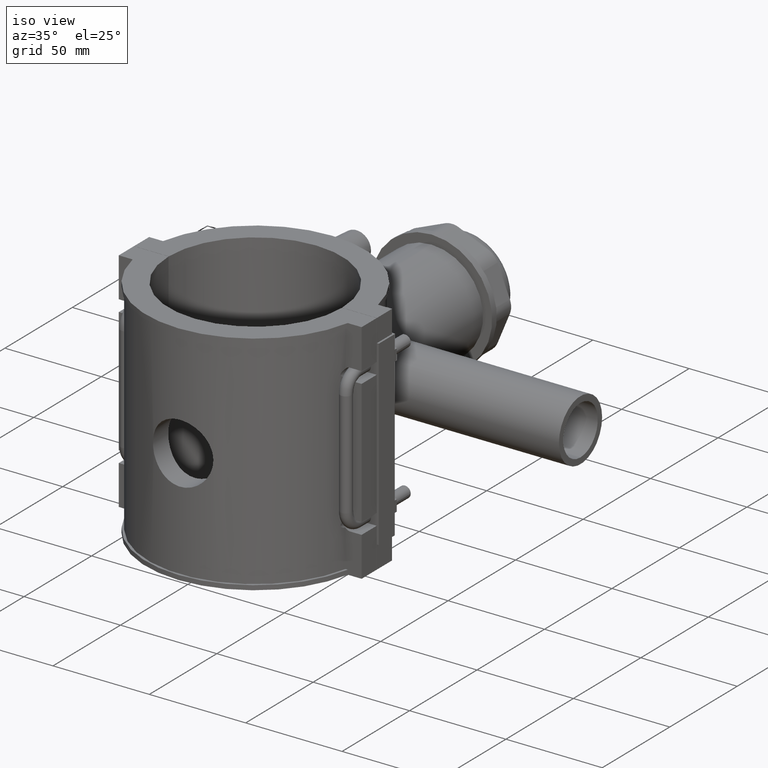
[diagram: clean part render]
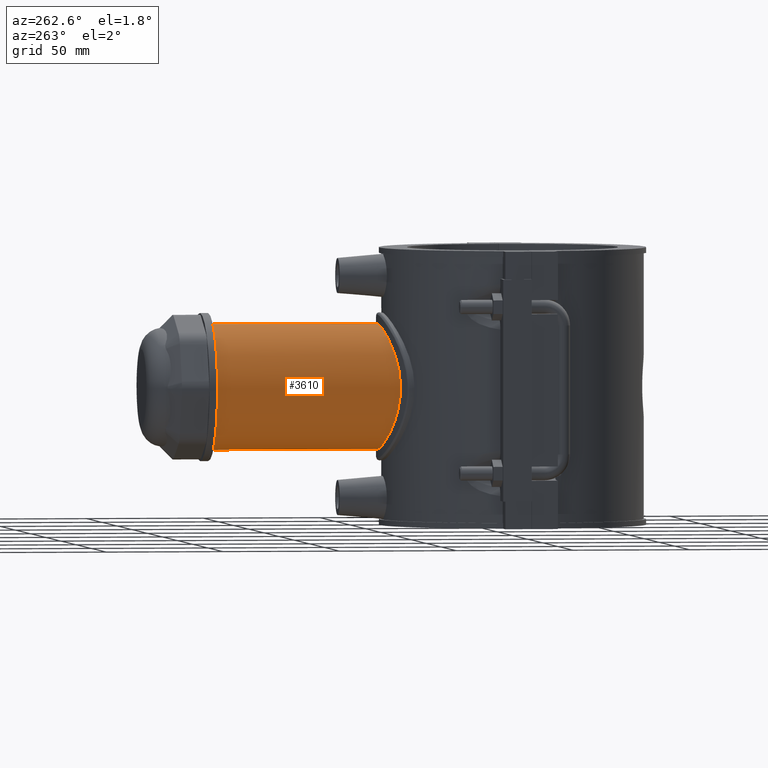
[diagram: tour spotlight — one face highlighted and labeled with its STEP entity id]
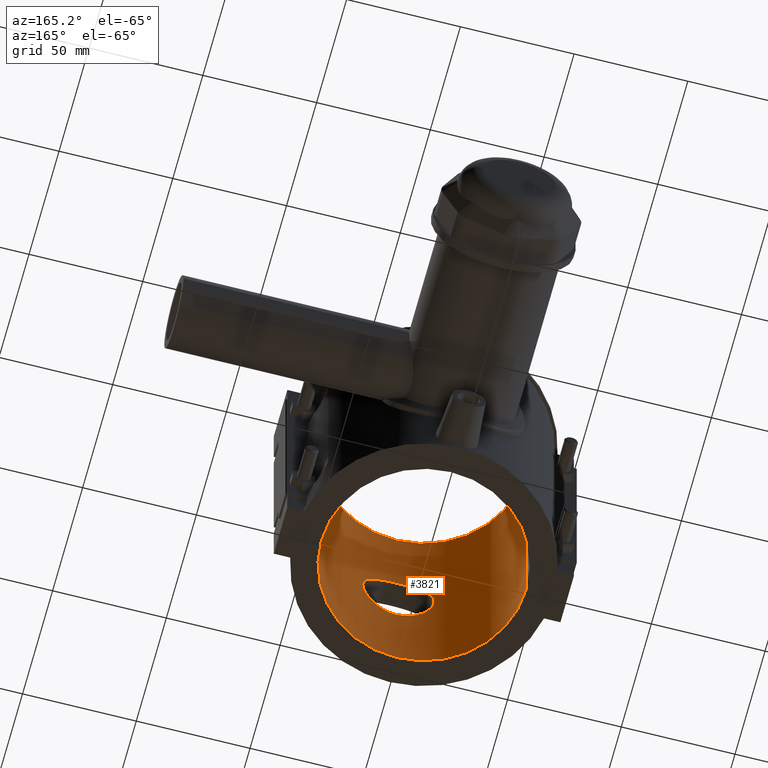
[diagram: tour spotlight — one face highlighted and labeled with its STEP entity id]
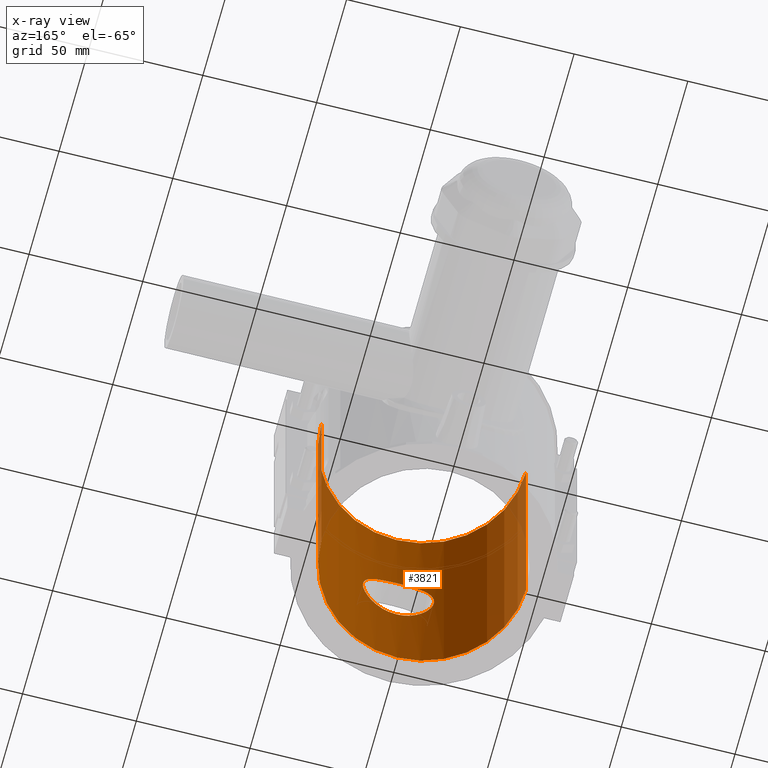
[diagram: x-ray of the same camera — body ghosted, this tour face saturated]
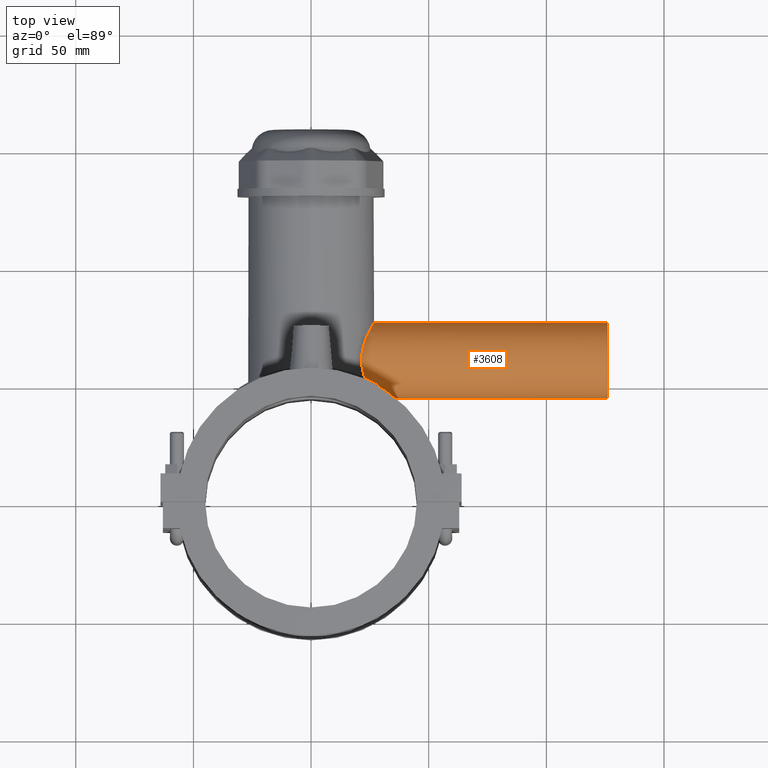
[diagram: tour spotlight — one face highlighted and labeled with its STEP entity id]
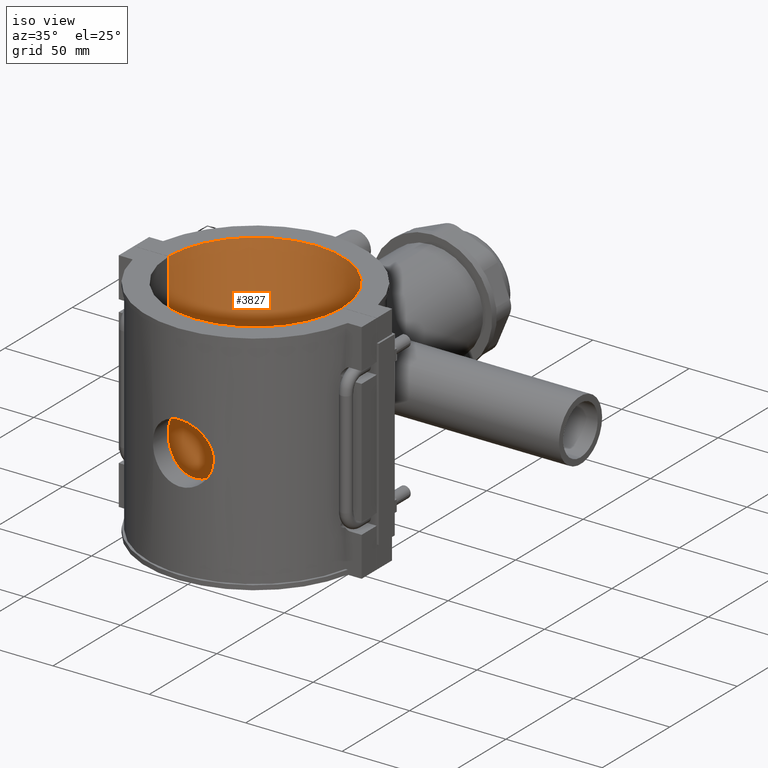
[diagram: tour spotlight — one face highlighted and labeled with its STEP entity id]
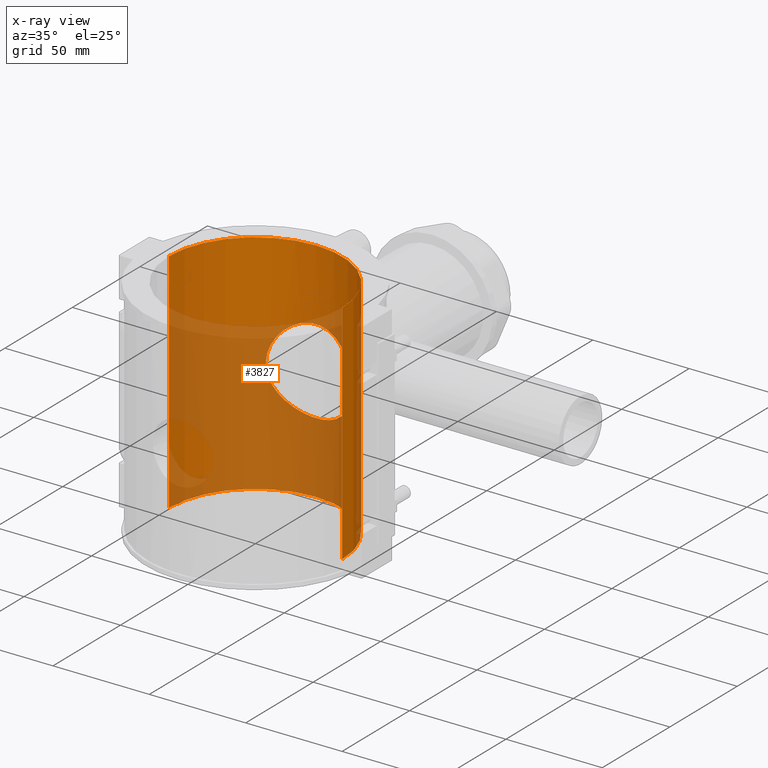
[diagram: x-ray of the same camera — body ghosted, this tour face saturated]
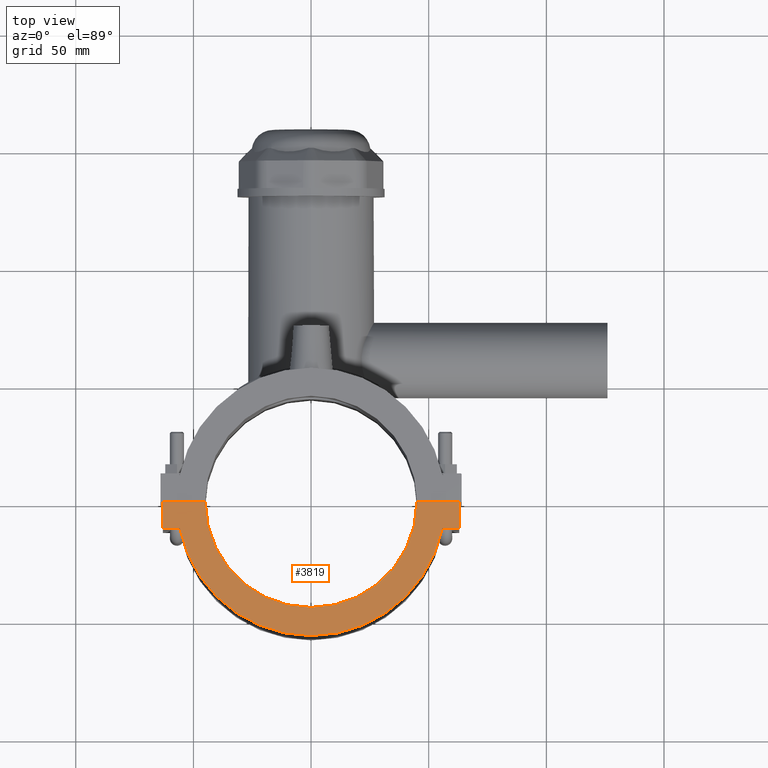
[diagram: tour spotlight — one face highlighted and labeled with its STEP entity id]
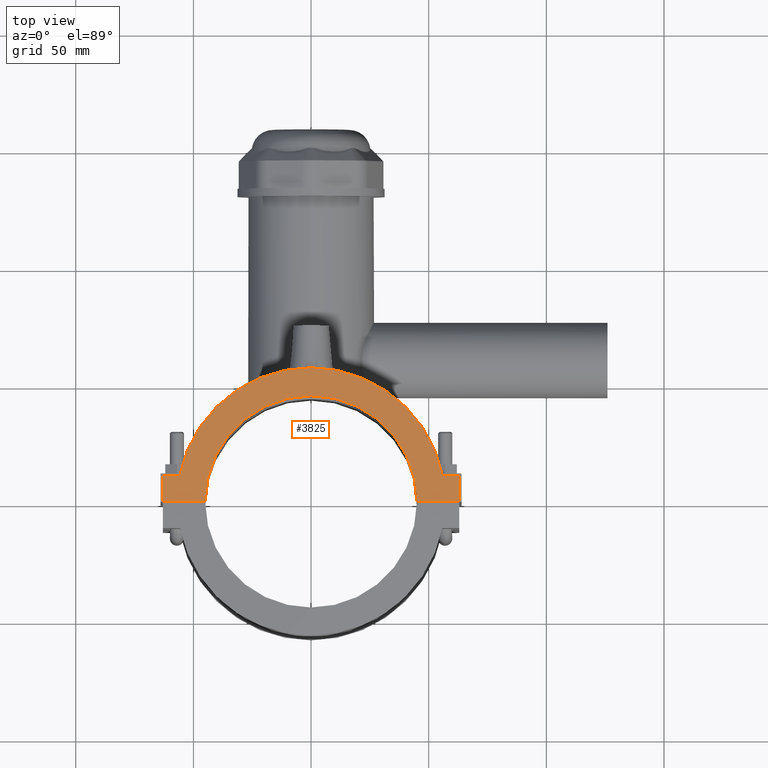
[diagram: tour spotlight — one face highlighted and labeled with its STEP entity id]
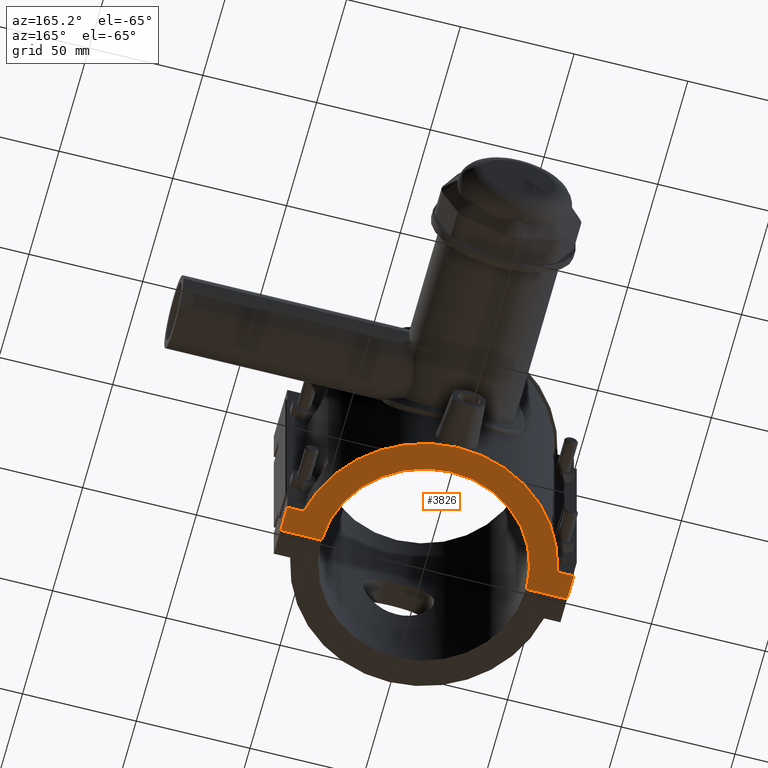
[diagram: tour spotlight — one face highlighted and labeled with its STEP entity id]
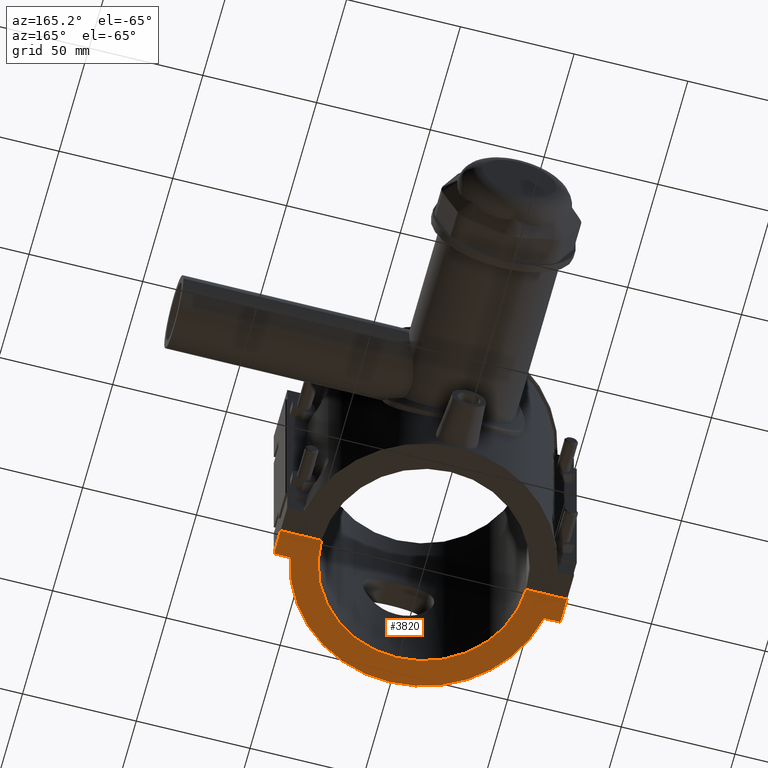
[diagram: tour spotlight — one face highlighted and labeled with its STEP entity id]
A machine part: a face-by-face anatomy tour. The part has 224 B-rep faces; the first image is the clean iso view, then the 8 largest visible faces are spotlighted one at a time (largest first), each with its STEP entity span.

Face 1 — auxiliary view, entity #3610. In plain terms, the highlighted cylindrical surface (bore or boss wall) has radius 26.775 mm, axis along (0, 1, 0).
Definition (entity closure, byte-faithful):
#785=CIRCLE('',#3840,26.775);
#910=FACE_BOUND('',#1191,.T.);
#961=FACE_OUTER_BOUND('',#1190,.T.);
#1190=EDGE_LOOP('',(#2475,#2476));
#1191=EDGE_LOOP('',(#2477));
#1464=B_SPLINE_CURVE_WITH_KNOTS('',3,(#5297,#5298,#5299,#5300,#5301,#5302,
#5303,#5304,#5305,#5306,#5307,#5308,#5309,#5310,#5311,#5312,#5313,#5314,
#5315,#5316,#5317,#5318,#5319,#5320,#5321,#5322,#5323,#5324,#5325,#5326,
#5327,#5328,#5329,#5330,#5331,#5332,#5333,#5334,#5335,#5336,#5337,#5338,
#5339),.UNSPECIFIED.,.F.,.F.,(4,2,2,2,2,2,2,2,2,2,2,2,2,2,2,2,2,3,2,2,4),
(4.1932825173589,4.34909750152277,4.66087416849752,4.97265083547228,5.28442750244703,
5.59620416942179,6.2197575033713,6.52956219083058,6.83936687828986,7.14917156574914,
7.45897625320842,7.7687809406677,8.07858562812698,8.38839031558626,8.69819500304554,
9.32174833699505,9.6335250039698,9.94530167094456,10.2570783379193,10.5688550048941,
10.7246699890579),.UNSPECIFIED.);
#1465=B_SPLINE_CURVE_WITH_KNOTS('',3,(#5342,#5343,#5344,#5345,#5346,#5347,
#5348,#5349,#5350,#5351,#5352,#5353,#5354,#5355,#5356,#5357,#5358,#5359,
#5360,#5361,#5362,#5363,#5364,#5365,#5366,#5367,#5368,#5369,#5370,#5371,
#5372,#5373,#5374,#5375,#5376,#5377,#5378,#5379,#5380,#5381,#5382,#5383,
#5384,#5385,#5386,#5387,#5388,#5389,#5390,#5391,#5392,#5393,#5394,#5395,
#5396,#5397,#5398,#5399),.UNSPECIFIED.,.F.,.F.,(4,2,2,2,2,2,2,2,2,2,2,2,
2,2,2,2,2,2,2,2,2,2,2,2,2,2,2,2,4),(1.4337320086698,1.54009274072779,2.05345698763706,
2.56584796086913,3.0782389341012,3.59062990733328,4.10302088056535,4.61541185379743,
5.1278028270295,5.64019380026157,6.15258477349365,6.66594902040291,7.17931326731217,
7.69267751422144,8.2060417611307,8.71940600803997,9.23277025494923,9.74613450185849,
10.2594987487678,10.7718897219998,11.2842806952319,11.796671668464,12.3090626416961,
12.8214536149281,13.3338445881602,13.8462355613923,14.3586265346243,14.8719907815336,
14.9783515135916),.UNSPECIFIED.);
#1575=VERTEX_POINT('',#5240);
#1581=VERTEX_POINT('',#5290);
#1582=VERTEX_POINT('',#5400);
#1934=EDGE_CURVE('',#1575,#1581,#1464,.T.);
#1935=EDGE_CURVE('',#1575,#1581,#1465,.T.);
#1936=EDGE_CURVE('',#1582,#1582,#785,.T.);
#2475=ORIENTED_EDGE('',*,*,#1935,.F.);
#2476=ORIENTED_EDGE('',*,*,#1934,.T.);
#2477=ORIENTED_EDGE('',*,*,#1936,.F.);
#3553=CYLINDRICAL_SURFACE('',#3839,26.775);
#3610=ADVANCED_FACE('',(#961,#910),#3553,.T.);
#3839=AXIS2_PLACEMENT_3D('',#5341,#4175,#4176);
#3840=AXIS2_PLACEMENT_3D('',#5401,#4177,#4178);
#4175=DIRECTION('center_axis',(0.,1.,3.06161699786838E-16));
#4176=DIRECTION('ref_axis',(0.,0.,1.));
#4177=DIRECTION('center_axis',(0.,1.,3.06161699786838E-16));
#4178=DIRECTION('ref_axis',(1.,0.,0.));
#5240=CARTESIAN_POINT('',(22.7832774654239,53.3726080815608,14.0649526377863));
#5290=CARTESIAN_POINT('',(22.7832774654239,53.3726080815608,-14.0649526377863));
#5297=CARTESIAN_POINT('Ctrl Pts',(22.7832774704788,53.3726080934026,14.0649526377863));
#5298=CARTESIAN_POINT('Ctrl Pts',(22.6284394475558,53.8351145022034,14.315768814));
#5299=CARTESIAN_POINT('Ctrl Pts',(22.4811139264939,54.3126328817552,14.5451302561428));
#5300=CARTESIAN_POINT('Ctrl Pts',(22.0738358565846,55.7809661200546,15.1621042542592));
#5301=CARTESIAN_POINT('Ctrl Pts',(21.8493342169364,56.8093361791922,15.4781804723888));
#5302=CARTESIAN_POINT('Ctrl Pts',(21.5463525931121,58.8991509887606,15.89723771262));
#5303=CARTESIAN_POINT('Ctrl Pts',(21.468596251269,59.9607444434175,16.));
#5304=CARTESIAN_POINT('Ctrl Pts',(21.468596251269,62.0392555565825,16.));
#5305=CARTESIAN_POINT('Ctrl Pts',(21.5463525931121,63.1008490112394,15.89723771262));
#5306=CARTESIAN_POINT('Ctrl Pts',(21.8493342169364,65.1906638208078,15.4781804723888));
#5307=CARTESIAN_POINT('Ctrl Pts',(22.0738358565845,66.2190338799454,15.1621042542592));
#5308=CARTESIAN_POINT('Ctrl Pts',(22.8885197727262,69.1561610202428,13.9279626932984));
#5309=CARTESIAN_POINT('Ctrl Pts',(23.6165178538161,70.9178711378955,12.709545860074));
#5310=CARTESIAN_POINT('Ctrl Pts',(24.5905952249116,73.0072128615663,10.6202041364032));
#5311=CARTESIAN_POINT('Ctrl Pts',(24.9200530429652,73.6631089000279,9.83487296422255));
#5312=CARTESIAN_POINT('Ctrl Pts',(25.5319677906687,74.8284728986762,8.11494858927958));
#5313=CARTESIAN_POINT('Ctrl Pts',(25.8140241686966,75.3380241030435,7.18026930716382));
#5314=CARTESIAN_POINT('Ctrl Pts',(26.281482492882,76.1634896602635,5.21572543603532));
#5315=CARTESIAN_POINT('Ctrl Pts',(26.4670497771025,76.4800716584187,4.18386453630047));
#5316=CARTESIAN_POINT('Ctrl Pts',(26.7138811201746,76.8984068117201,2.09236752593558));
#5317=CARTESIAN_POINT('Ctrl Pts',(26.775,77.,1.03268229153094));
#5318=CARTESIAN_POINT('Ctrl Pts',(26.775,77.,-1.03268229153093));
#5319=CARTESIAN_POINT('Ctrl Pts',(26.7138811201746,76.8984068117201,-2.09236752593557));
#5320=CARTESIAN_POINT('Ctrl Pts',(26.4670497771025,76.4800716584187,-4.18386453630046));
#5321=CARTESIAN_POINT('Ctrl Pts',(26.281482492882,76.1634896602635,-5.21572543603531));
#5322=CARTESIAN_POINT('Ctrl Pts',(25.8140241686966,75.3380241030435,-7.18026930716381));
#5323=CARTESIAN_POINT('Ctrl Pts',(25.5319677906687,74.8284728986762,-8.11494858927958));
#5324=CARTESIAN_POINT('Ctrl Pts',(24.9200530429652,73.6631089000279,-9.83487296422254));
#5325=CARTESIAN_POINT('Ctrl Pts',(24.5905952249116,73.0072128615663,-10.6202041364032));
#5326=CARTESIAN_POINT('Ctrl Pts',(23.6165178538161,70.9178711378955,-12.709545860074));
#5327=CARTESIAN_POINT('Ctrl Pts',(22.8885197727262,69.1561610202428,-13.9279626932984));
#5328=CARTESIAN_POINT('Ctrl Pts',(22.0738358565845,66.2190338799454,-15.1621042542592));
#5329=CARTESIAN_POINT('Ctrl Pts',(21.8493342169364,65.1906638208078,-15.4781804723888));
#5330=CARTESIAN_POINT('Ctrl Pts',(21.5463525931121,63.1008490112394,-15.89723771262));
#5331=CARTESIAN_POINT('Ctrl Pts',(21.468596251269,62.0392555565825,-16.));
#5332=CARTESIAN_POINT('Ctrl Pts',(21.468596251269,61.,-16.));
#5333=CARTESIAN_POINT('Ctrl Pts',(21.468596251269,59.9607444434175,-16.));
#5334=CARTESIAN_POINT('Ctrl Pts',(21.5463525931121,58.8991509887606,-15.89723771262));
#5335=CARTESIAN_POINT('Ctrl Pts',(21.8493342169364,56.8093361791922,-15.4781804723888));
#5336=CARTESIAN_POINT('Ctrl Pts',(22.0738358565845,55.7809661200546,-15.1621042542592));
#5337=CARTESIAN_POINT('Ctrl Pts',(22.4811139264939,54.3126328817552,-14.5451302561428));
#5338=CARTESIAN_POINT('Ctrl Pts',(22.6284394475558,53.8351145022033,-14.315768814));
#5339=CARTESIAN_POINT('Ctrl Pts',(22.7832774704788,53.3726080934025,-14.0649526377863));
#5341=CARTESIAN_POINT('Origin',(0.,87.75,1.30884126658873E-14));
#5342=CARTESIAN_POINT('Ctrl Pts',(22.7832774673386,53.3726080667439,14.0649526428729));
#5343=CARTESIAN_POINT('Ctrl Pts',(22.5918526638819,53.4543219752311,14.3750343418324));
#5344=CARTESIAN_POINT('Ctrl Pts',(22.3946295471757,53.5372924259252,14.6803388313627));
#5345=CARTESIAN_POINT('Ctrl Pts',(21.2140143143899,54.0259096784558,16.4292932972868));
#5346=CARTESIAN_POINT('Ctrl Pts',(20.1082959771635,54.4510411519475,17.7572721553761));
#5347=CARTESIAN_POINT('Ctrl Pts',(17.7595007772698,55.2616840467427,20.1060673552698));
#5348=CARTESIAN_POINT('Ctrl Pts',(16.4326119937272,55.6770326718015,21.2114817635876));
#5349=CARTESIAN_POINT('Ctrl Pts',(13.5345396493294,56.4515627818206,23.168382165925));
#5350=CARTESIAN_POINT('Ctrl Pts',(11.9632928238325,56.8101212212733,24.0200210129507));
#5351=CARTESIAN_POINT('Ctrl Pts',(8.67160142553017,57.4048219136669,25.3945885607132));
#5352=CARTESIAN_POINT('Ctrl Pts',(6.94809250869673,57.641064706949,25.9186125520985));
#5353=CARTESIAN_POINT('Ctrl Pts',(3.46630764737262,57.9547499464772,26.6089304076598));
#5354=CARTESIAN_POINT('Ctrl Pts',(1.70796991077358,58.032,26.775));
#5355=CARTESIAN_POINT('Ctrl Pts',(-1.70796991077358,58.032,26.775));
#5356=CARTESIAN_POINT('Ctrl Pts',(-3.46630764737262,57.9547499464772,26.6089304076598));
#5357=CARTESIAN_POINT('Ctrl Pts',(-6.94809250869673,57.641064706949,25.9186125520985));
#5358=CARTESIAN_POINT('Ctrl Pts',(-8.67160142553017,57.4048219136669,25.3945885607132));
#5359=CARTESIAN_POINT('Ctrl Pts',(-11.9632928238325,56.8101212212733,24.0200210129507));
#5360=CARTESIAN_POINT('Ctrl Pts',(-13.5345396493294,56.4515627818206,23.168382165925));
#5361=CARTESIAN_POINT('Ctrl Pts',(-16.4326119937272,55.6770326718015,21.2114817635876));
#5362=CARTESIAN_POINT('Ctrl Pts',(-17.7595007772698,55.2616840467427,20.1060673552698));
#5363=CARTESIAN_POINT('Ctrl Pts',(-20.1082959771635,54.4510411519475,17.7572721553761));
#5364=CARTESIAN_POINT('Ctrl Pts',(-21.2140143143899,54.0259096784558,16.4292932972868));
#5365=CARTESIAN_POINT('Ctrl Pts',(-23.1699969532652,53.2163937273955,13.5317154272648));
#5366=CARTESIAN_POINT('Ctrl Pts',(-24.0205045253944,52.8327944564397,11.9620613228521));
#5367=CARTESIAN_POINT('Ctrl Pts',(-25.3937610878862,52.1866439819032,8.67365659297139));
#5368=CARTESIAN_POINT('Ctrl Pts',(-25.9176002863459,51.9243779518539,6.9518011781722));
#5369=CARTESIAN_POINT('Ctrl Pts',(-26.608349436428,51.5738186591046,3.4706316338264));
#5370=CARTESIAN_POINT('Ctrl Pts',(-26.775,51.4860408169049,1.71121415636421));
#5371=CARTESIAN_POINT('Ctrl Pts',(-26.775,51.4860408169049,-1.71121415636421));
#5372=CARTESIAN_POINT('Ctrl Pts',(-26.608349436428,51.5738186591046,-3.4706316338264));
#5373=CARTESIAN_POINT('Ctrl Pts',(-25.9176002863459,51.9243779518539,-6.9518011781722));
#5374=CARTESIAN_POINT('Ctrl Pts',(-25.3937610878862,52.1866439819032,-8.67365659297139));
#5375=CARTESIAN_POINT('Ctrl Pts',(-24.0205045253944,52.8327944564397,-11.9620613228521));
#5376=CARTESIAN_POINT('Ctrl Pts',(-23.1699969532652,53.2163937273955,-13.5317154272648));
#5377=CARTESIAN_POINT('Ctrl Pts',(-21.2140143143899,54.0259096784558,-16.4292932972868));
#5378=CARTESIAN_POINT('Ctrl Pts',(-20.1082959771635,54.4510411519475,-17.7572721553761));
#5379=CARTESIAN_POINT('Ctrl Pts',(-17.7595007772698,55.2616840467427,-20.1060673552698));
#5380=CARTESIAN_POINT('Ctrl Pts',(-16.4326119937272,55.6770326718015,-21.2114817635875));
#5381=CARTESIAN_POINT('Ctrl Pts',(-13.5345396493294,56.4515627818206,-23.168382165925));
#5382=CARTESIAN_POINT('Ctrl Pts',(-11.9632928238325,56.8101212212733,-24.0200210129507));
#5383=CARTESIAN_POINT('Ctrl Pts',(-8.67160142553016,57.4048219136669,-25.3945885607132));
#5384=CARTESIAN_POINT('Ctrl Pts',(-6.94809250869672,57.641064706949,-25.9186125520985));
#5385=CARTESIAN_POINT('Ctrl Pts',(-3.46630764737261,57.9547499464772,-26.6089304076598));
#5386=CARTESIAN_POINT('Ctrl Pts',(-1.70796991077358,58.032,-26.775));
#5387=CARTESIAN_POINT('Ctrl Pts',(1.70796991077358,58.032,-26.775));
#5388=CARTESIAN_POINT('Ctrl Pts',(3.46630764737261,57.9547499464772,-26.6089304076598));
#5389=CARTESIAN_POINT('Ctrl Pts',(6.94809250869672,57.641064706949,-25.9186125520985));
#5390=CARTESIAN_POINT('Ctrl Pts',(8.67160142553016,57.4048219136669,-25.3945885607132));
#5391=CARTESIAN_POINT('Ctrl Pts',(11.9632928238325,56.8101212212733,-24.0200210129507));
#5392=CARTESIAN_POINT('Ctrl Pts',(13.5345396493294,56.4515627818206,-23.168382165925));
#5393=CARTESIAN_POINT('Ctrl Pts',(16.4326119937272,55.6770326718015,-21.2114817635876));
#5394=CARTESIAN_POINT('Ctrl Pts',(17.7595007772698,55.2616840467427,-20.1060673552698));
#5395=CARTESIAN_POINT('Ctrl Pts',(20.1082959771635,54.4510411519475,-17.7572721553761));
#5396=CARTESIAN_POINT('Ctrl Pts',(21.2140143143899,54.0259096784558,-16.4292932972868));
#5397=CARTESIAN_POINT('Ctrl Pts',(22.3946295471757,53.5372924259252,-14.6803388313627));
#5398=CARTESIAN_POINT('Ctrl Pts',(22.5918526638819,53.4543219752311,-14.3750343418324));
#5399=CARTESIAN_POINT('Ctrl Pts',(22.7832774673386,53.3726080667439,-14.0649526428729));
#5400=CARTESIAN_POINT('',(0.,130.5,26.775));
#5401=CARTESIAN_POINT('Origin',(0.,130.5,2.61768253317747E-14));

Face 2 — auxiliary view, entity #3821. An x-ray twin of the same camera follows (body ghosted, this face saturated) — the face is partly hidden behind the body. In plain terms, the highlighted cylindrical surface (partial cylindrical patch) has radius 45 mm, axis along (0, 0, 1).
Definition (entity closure, byte-faithful):
#284=LINE('',#7658,#583);
#337=LINE('',#8052,#636);
#583=VECTOR('',#4884,118.);
#636=VECTOR('',#5073,118.);
#901=CIRCLE('',#4144,45.);
#902=CIRCLE('',#4146,45.);
#952=FACE_BOUND('',#1444,.T.);
#1172=FACE_OUTER_BOUND('',#1443,.T.);
#1443=EDGE_LOOP('',(#3502,#3503,#3504,#3505));
#1444=EDGE_LOOP('',(#3506));
#1510=B_SPLINE_CURVE_WITH_KNOTS('',3,(#6399,#6400,#6401,#6402,#6403,#6404,
#6405,#6406,#6407,#6408,#6409,#6410,#6411,#6412,#6413,#6414,#6415,#6416,
#6417,#6418,#6419,#6420,#6421,#6422,#6423,#6424,#6425,#6426,#6427,#6428,
#6429,#6430,#6431,#6432,#6433,#6434,#6435,#6436,#6437,#6438,#6439,#6440,
#6441,#6442,#6443,#6444,#6445,#6446,#6447,#6448,#6449,#6450,#6451,#6452,
#6453,#6454,#6455,#6456),.UNSPECIFIED.,.T.,.F.,(4,2,2,2,2,2,2,2,2,2,2,2,
2,2,2,2,2,2,2,2,2,2,2,2,2,2,2,2,4),(0.,0.298130774437552,0.596261548875103,
1.19252309775021,1.49048702667013,1.78845095559006,2.08641488450998,2.38437881342991,
2.68234274234983,2.98030667126975,3.27827060018968,3.5762345291096,4.17249607798471,
4.47062685242226,4.76875762685981,5.06688840129736,5.36501917573491,5.96128072461002,
6.25924465352994,6.55720858244987,6.85517251136979,7.15313644028972,7.45110036920964,
7.74906429812957,8.04702822704949,8.34499215596941,8.94125370484452,9.23938447928207,
9.53751525371962),.UNSPECIFIED.);
#1667=VERTEX_POINT('',#6398);
#1864=VERTEX_POINT('',#7655);
#1865=VERTEX_POINT('',#7657);
#1917=VERTEX_POINT('',#8049);
#1918=VERTEX_POINT('',#8051);
#2080=EDGE_CURVE('',#1667,#1667,#1510,.T.);
#2354=EDGE_CURVE('',#1865,#1864,#284,.T.);
#2447=EDGE_CURVE('',#1918,#1917,#337,.T.);
#2449=EDGE_CURVE('',#1918,#1864,#901,.T.);
#2450=EDGE_CURVE('',#1865,#1917,#902,.T.);
#3502=ORIENTED_EDGE('',*,*,#2447,.T.);
#3503=ORIENTED_EDGE('',*,*,#2450,.F.);
#3504=ORIENTED_EDGE('',*,*,#2354,.T.);
#3505=ORIENTED_EDGE('',*,*,#2449,.F.);
#3506=ORIENTED_EDGE('',*,*,#2080,.T.);
#3602=CYLINDRICAL_SURFACE('',#4147,45.);
#3821=ADVANCED_FACE('',(#1172,#952),#3602,.F.);
#4144=AXIS2_PLACEMENT_3D('',#8056,#5079,#5080);
#4146=AXIS2_PLACEMENT_3D('',#8058,#5083,#5084);
#4147=AXIS2_PLACEMENT_3D('',#8059,#5085,#5086);
#4884=DIRECTION('',(0.,0.,1.));
#5073=DIRECTION('',(0.,0.,-1.));
#5079=DIRECTION('center_axis',(0.,0.,-1.));
#5080=DIRECTION('ref_axis',(-1.,0.,0.));
#5083=DIRECTION('center_axis',(0.,0.,1.));
#5084=DIRECTION('ref_axis',(-1.,0.,0.));
#5085=DIRECTION('center_axis',(0.,0.,1.));
#5086=DIRECTION('ref_axis',(-1.,0.,0.));
#6398=CARTESIAN_POINT('',(15.68,-42.1798245610387,2.77555756156289E-16));
#6399=CARTESIAN_POINT('Ctrl Pts',(15.68,-42.1798245610387,2.77555756156289E-16));
#6400=CARTESIAN_POINT('Ctrl Pts',(15.68,-42.1798245610387,0.993769248125173));
#6401=CARTESIAN_POINT('Ctrl Pts',(15.5840062611448,-42.2159243813651,2.01849568046661));
#6402=CARTESIAN_POINT('Ctrl Pts',(15.1829951016987,-42.3618009790322,4.05120176988392));
#6403=CARTESIAN_POINT('Ctrl Pts',(14.8780965708993,-42.4714239376622,5.05921591543679));
#6404=CARTESIAN_POINT('Ctrl Pts',(13.6743092749295,-42.8804342755879,7.95234733967828));
#6405=CARTESIAN_POINT('Ctrl Pts',(12.4706643468803,-43.2610623394661,9.70420431112979));
#6406=CARTESIAN_POINT('Ctrl Pts',(10.3962063745887,-43.7884410454044,11.7786622834215));
#6407=CARTESIAN_POINT('Ctrl Pts',(9.61490003473461,-43.9694011229695,12.428665076078));
#6408=CARTESIAN_POINT('Ctrl Pts',(7.91087463584725,-44.307703622236,13.5770424166243));
#6409=CARTESIAN_POINT('Ctrl Pts',(6.98815325823131,-44.4647418327408,14.075503120421));
#6410=CARTESIAN_POINT('Ctrl Pts',(5.05882727978244,-44.7253375478535,14.8782506934927));
#6411=CARTESIAN_POINT('Ctrl Pts',(4.05053588295858,-44.8289074026202,15.183175141873));
#6412=CARTESIAN_POINT('Ctrl Pts',(2.01774280473302,-44.9662817433942,15.5841060797187));
#6413=CARTESIAN_POINT('Ctrl Pts',(0.99321309639975,-45.,15.68));
#6414=CARTESIAN_POINT('Ctrl Pts',(-0.993213096399747,-45.,15.68));
#6415=CARTESIAN_POINT('Ctrl Pts',(-2.01774280473302,-44.9662817433942,15.5841060797187));
#6416=CARTESIAN_POINT('Ctrl Pts',(-4.05053588295858,-44.8289074026202,15.183175141873));
#6417=CARTESIAN_POINT('Ctrl Pts',(-5.05882727978244,-44.7253375478535,14.8782506934927));
#6418=CARTESIAN_POINT('Ctrl Pts',(-6.9881532582313,-44.4647418327408,14.075503120421));
#6419=CARTESIAN_POINT('Ctrl Pts',(-7.91087463584725,-44.307703622236,13.5770424166243));
#6420=CARTESIAN_POINT('Ctrl Pts',(-9.61490003473461,-43.9694011229695,12.428665076078));
#6421=CARTESIAN_POINT('Ctrl Pts',(-10.3962063745887,-43.7884410454044,11.7786622834215));
#6422=CARTESIAN_POINT('Ctrl Pts',(-12.4706643468803,-43.2610623394661,9.7042043111298));
#6423=CARTESIAN_POINT('Ctrl Pts',(-13.6743092749295,-42.8804342755878,7.95234733967828));
#6424=CARTESIAN_POINT('Ctrl Pts',(-14.8780965708993,-42.4714239376622,5.05921591543679));
#6425=CARTESIAN_POINT('Ctrl Pts',(-15.1829951016987,-42.3618009790322,4.05120176988392));
#6426=CARTESIAN_POINT('Ctrl Pts',(-15.5840062611448,-42.2159243813651,2.01849568046661));
#6427=CARTESIAN_POINT('Ctrl Pts',(-15.68,-42.1798245610387,0.993769248125173));
#6428=CARTESIAN_POINT('Ctrl Pts',(-15.68,-42.1798245610387,-0.993769248125173));
#6429=CARTESIAN_POINT('Ctrl Pts',(-15.5840062611448,-42.2159243813651,-2.01849568046661));
#6430=CARTESIAN_POINT('Ctrl Pts',(-15.1829951016987,-42.3618009790322,-4.05120176988392));
#6431=CARTESIAN_POINT('Ctrl Pts',(-14.8780965708993,-42.4714239376622,-5.05921591543679));
#6432=CARTESIAN_POINT('Ctrl Pts',(-13.6743092749295,-42.8804342755878,-7.95234733967828));
#6433=CARTESIAN_POINT('Ctrl Pts',(-12.4706643468803,-43.2610623394661,-9.70420431112979));
#6434=CARTESIAN_POINT('Ctrl Pts',(-10.3962063745887,-43.7884410454044,-11.7786622834215));
#6435=CARTESIAN_POINT('Ctrl Pts',(-9.61490003473461,-43.9694011229695,-12.428665076078));
#6436=CARTESIAN_POINT('Ctrl Pts',(-7.91087463584725,-44.307703622236,-13.5770424166243));
#6437=CARTESIAN_POINT('Ctrl Pts',(-6.9881532582313,-44.4647418327408,-14.075503120421));
#6438=CARTESIAN_POINT('Ctrl Pts',(-5.05882727978244,-44.7253375478535,-14.8782506934927));
#6439=CARTESIAN_POINT('Ctrl Pts',(-4.05053588295858,-44.8289074026202,-15.183175141873));
#6440=CARTESIAN_POINT('Ctrl Pts',(-2.01774280473303,-44.9662817433942,-15.5841060797187));
#6441=CARTESIAN_POINT('Ctrl Pts',(-0.993213096399753,-45.,-15.68));
#6442=CARTESIAN_POINT('Ctrl Pts',(0.993213096399747,-45.,-15.68));
#6443=CARTESIAN_POINT('Ctrl Pts',(2.01774280473302,-44.9662817433942,-15.5841060797187));
#6444=CARTESIAN_POINT('Ctrl Pts',(4.05053588295858,-44.8289074026202,-15.183175141873));
#6445=CARTESIAN_POINT('Ctrl Pts',(5.05882727978244,-44.7253375478535,-14.8782506934927));
#6446=CARTESIAN_POINT('Ctrl Pts',(6.9881532582313,-44.4647418327408,-14.075503120421));
#6447=CARTESIAN_POINT('Ctrl Pts',(7.91087463584724,-44.307703622236,-13.5770424166243));
#6448=CARTESIAN_POINT('Ctrl Pts',(9.6149000347346,-43.9694011229695,-12.428665076078));
#6449=CARTESIAN_POINT('Ctrl Pts',(10.3962063745887,-43.7884410454044,-11.7786622834215));
#6450=CARTESIAN_POINT('Ctrl Pts',(12.4706643468803,-43.2610623394661,-9.7042043111298));
#6451=CARTESIAN_POINT('Ctrl Pts',(13.6743092749295,-42.8804342755879,-7.95234733967828));
#6452=CARTESIAN_POINT('Ctrl Pts',(14.8780965708993,-42.4714239376622,-5.0592159154368));
#6453=CARTESIAN_POINT('Ctrl Pts',(15.1829951016986,-42.3618009790322,-4.05120176988393));
#6454=CARTESIAN_POINT('Ctrl Pts',(15.5840062611448,-42.2159243813651,-2.01849568046661));
#6455=CARTESIAN_POINT('Ctrl Pts',(15.68,-42.1798245610387,-0.993769248125175));
#6456=CARTESIAN_POINT('Ctrl Pts',(15.68,-42.1798245610387,2.77555756156289E-16));
#7655=CARTESIAN_POINT('',(-44.9999722222136,-0.0500000000000078,59.));
#7657=CARTESIAN_POINT('',(-44.9999722222136,-0.0500000000000078,-59.));
#7658=CARTESIAN_POINT('',(-44.9999722222136,-0.0500000000000078,0.));
#8049=CARTESIAN_POINT('',(44.9999722222136,-0.0500000000000078,-59.));
#8051=CARTESIAN_POINT('',(44.9999722222136,-0.0500000000000078,59.));
#8052=CARTESIAN_POINT('',(44.9999722222136,-0.0500000000000078,0.));
#8056=CARTESIAN_POINT('Origin',(0.,0.,59.));
#8058=CARTESIAN_POINT('Origin',(0.,0.,-59.));
#8059=CARTESIAN_POINT('Origin',(0.,0.,0.));

Face 3 — top view, entity #3608. In plain terms, the highlighted cylindrical surface (bore or boss wall) has radius 16 mm, axis along (1, 0, 0).
Definition (entity closure, byte-faithful):
#784=CIRCLE('',#3837,16.);
#908=FACE_BOUND('',#1187,.T.);
#959=FACE_OUTER_BOUND('',#1186,.T.);
#1186=EDGE_LOOP('',(#2464));
#1187=EDGE_LOOP('',(#2465,#2466,#2467,#2468,#2469,#2470,#2471,#2472));
#1457=B_SPLINE_CURVE_WITH_KNOTS('',3,(#5241,#5242,#5243,#5244,#5245,#5246),
 .UNSPECIFIED.,.F.,.F.,(4,2,4),(5.0277620154325,5.58135095085646,5.67921235053466),
 .UNSPECIFIED.);
#1458=B_SPLINE_CURVE_WITH_KNOTS('',3,(#5248,#5249,#5250,#5251,#5252,#5253,
#5254,#5255),.UNSPECIFIED.,.F.,.F.,(4,2,2,4),(-0.161382682871331,-0.0912193021931717,
-0.0202780672547694,0.),.UNSPECIFIED.);
#1459=B_SPLINE_CURVE_WITH_KNOTS('',3,(#5257,#5258,#5259,#5260,#5261,#5262),
 .UNSPECIFIED.,.F.,.F.,(4,2,4),(8.07945734974635,8.3076541078279,8.57640863817002),
 .UNSPECIFIED.);
#1460=B_SPLINE_CURVE_WITH_KNOTS('',3,(#5264,#5265,#5266,#5267,#5268,#5269,
#5270,#5271,#5272,#5273),.UNSPECIFIED.,.F.,.F.,(4,2,2,2,4),(2.21802040247643,
2.53565154950232,2.94674726320291,3.35784297690349,3.67547412392938),
 .UNSPECIFIED.);
#1461=B_SPLINE_CURVE_WITH_KNOTS('',3,(#5275,#5276,#5277,#5278,#5279,#5280),
 .UNSPECIFIED.,.F.,.F.,(4,2,4),(6.19516224244064,6.4639167711088,6.69211352919035),
 .UNSPECIFIED.);
#1462=B_SPLINE_CURVE_WITH_KNOTS('',3,(#5282,#5283,#5284,#5285,#5286,#5287,
#5288,#5289),.UNSPECIFIED.,.F.,.F.,(4,2,2,4),(-0.181328046355863,-0.125861281745978,
-0.0639975065610993,0.),.UNSPECIFIED.);
#1463=B_SPLINE_CURVE_WITH_KNOTS('',3,(#5291,#5292,#5293,#5294,#5295,#5296),
 .UNSPECIFIED.,.F.,.F.,(4,2,4),(1.14821153752945,1.24607293720764,1.79966187292176),
 .UNSPECIFIED.);
#1464=B_SPLINE_CURVE_WITH_KNOTS('',3,(#5297,#5298,#5299,#5300,#5301,#5302,
#5303,#5304,#5305,#5306,#5307,#5308,#5309,#5310,#5311,#5312,#5313,#5314,
#5315,#5316,#5317,#5318,#5319,#5320,#5321,#5322,#5323,#5324,#5325,#5326,
#5327,#5328,#5329,#5330,#5331,#5332,#5333,#5334,#5335,#5336,#5337,#5338,
#5339),.UNSPECIFIED.,.F.,.F.,(4,2,2,2,2,2,2,2,2,2,2,2,2,2,2,2,2,3,2,2,4),
(4.1932825173589,4.34909750152277,4.66087416849752,4.97265083547228,5.28442750244703,
5.59620416942179,6.2197575033713,6.52956219083058,6.83936687828986,7.14917156574914,
7.45897625320842,7.7687809406677,8.07858562812698,8.38839031558626,8.69819500304554,
9.32174833699505,9.6335250039698,9.94530167094456,10.2570783379193,10.5688550048941,
10.7246699890579),.UNSPECIFIED.);
#1573=VERTEX_POINT('',#5237);
#1574=VERTEX_POINT('',#5239);
#1575=VERTEX_POINT('',#5240);
#1576=VERTEX_POINT('',#5247);
#1577=VERTEX_POINT('',#5256);
#1578=VERTEX_POINT('',#5263);
#1579=VERTEX_POINT('',#5274);
#1580=VERTEX_POINT('',#5281);
#1581=VERTEX_POINT('',#5290);
#1926=EDGE_CURVE('',#1573,#1573,#784,.T.);
#1927=EDGE_CURVE('',#1574,#1575,#1457,.T.);
#1928=EDGE_CURVE('',#1576,#1574,#1458,.T.);
#1929=EDGE_CURVE('',#1577,#1576,#1459,.T.);
#1930=EDGE_CURVE('',#1578,#1577,#1460,.T.);
#1931=EDGE_CURVE('',#1579,#1578,#1461,.T.);
#1932=EDGE_CURVE('',#1580,#1579,#1462,.T.);
#1933=EDGE_CURVE('',#1581,#1580,#1463,.T.);
#1934=EDGE_CURVE('',#1575,#1581,#1464,.T.);
#2464=ORIENTED_EDGE('',*,*,#1926,.F.);
#2465=ORIENTED_EDGE('',*,*,#1927,.F.);
#2466=ORIENTED_EDGE('',*,*,#1928,.F.);
#2467=ORIENTED_EDGE('',*,*,#1929,.F.);
#2468=ORIENTED_EDGE('',*,*,#1930,.F.);
#2469=ORIENTED_EDGE('',*,*,#1931,.F.);
#2470=ORIENTED_EDGE('',*,*,#1932,.F.);
#2471=ORIENTED_EDGE('',*,*,#1933,.F.);
#2472=ORIENTED_EDGE('',*,*,#1934,.F.);
#3552=CYLINDRICAL_SURFACE('',#3836,16.);
#3608=ADVANCED_FACE('',(#959,#908),#3552,.T.);
#3836=AXIS2_PLACEMENT_3D('',#5236,#4169,#4170);
#3837=AXIS2_PLACEMENT_3D('',#5238,#4171,#4172);
#4169=DIRECTION('center_axis',(1.,0.,0.));
#4170=DIRECTION('ref_axis',(0.,1.,0.));
#4171=DIRECTION('center_axis',(1.,0.,0.));
#4172=DIRECTION('ref_axis',(0.,0.,-1.));
#5236=CARTESIAN_POINT('Origin',(63.,61.,0.));
#5237=CARTESIAN_POINT('',(126.,77.,0.));
#5238=CARTESIAN_POINT('Origin',(126.,61.,0.));
#5239=CARTESIAN_POINT('',(28.552382470161,50.5220197488295,12.091812517739));
#5240=CARTESIAN_POINT('',(22.7832774654239,53.3726080815608,14.0649526377863));
#5241=CARTESIAN_POINT('Ctrl Pts',(28.5523824673539,50.5220197482043,12.0918125127285));
#5242=CARTESIAN_POINT('Ctrl Pts',(27.0515625001804,51.3702040830932,12.8267940303045));
#5243=CARTESIAN_POINT('Ctrl Pts',(25.419241938369,52.2026380662991,13.3938764230184));
#5244=CARTESIAN_POINT('Ctrl Pts',(23.3981121669847,53.1069867512652,13.9185121787246));
#5245=CARTESIAN_POINT('Ctrl Pts',(23.0918649712486,53.2408806699429,13.9935171546169));
#5246=CARTESIAN_POINT('Ctrl Pts',(22.7832774579631,53.3726080707461,14.0649526254997));
#5247=CARTESIAN_POINT('',(29.4995633437696,49.4252759124834,11.0465271670776));
#5248=CARTESIAN_POINT('Ctrl Pts',(29.4995633461047,49.4252759164269,11.0465271641885));
#5249=CARTESIAN_POINT('Ctrl Pts',(29.4269203816635,49.6104151623538,11.240518964217));
#5250=CARTESIAN_POINT('Ctrl Pts',(29.3195316609193,49.7975080199704,11.4263880925919));
#5251=CARTESIAN_POINT('Ctrl Pts',(29.0426864640866,50.1489451967451,11.760700575605));
#5252=CARTESIAN_POINT('Ctrl Pts',(28.8807992896889,50.3026092924367,11.8992390682358));
#5253=CARTESIAN_POINT('Ctrl Pts',(28.6584405105293,50.458362796635,12.0364452478578));
#5254=CARTESIAN_POINT('Ctrl Pts',(28.6065142182096,50.4914273359785,12.0653031129959));
#5255=CARTESIAN_POINT('Ctrl Pts',(28.5523824751293,50.52201974381,12.0918125089208));
#5256=CARTESIAN_POINT('',(30.729388122064,46.5762246830517,6.92493361972928));
#5257=CARTESIAN_POINT('Ctrl Pts',(30.7293881222482,46.5762246839543,6.92493361933746));
#5258=CARTESIAN_POINT('Ctrl Pts',(30.5690738013887,46.9177691741659,7.63632830671601));
#5259=CARTESIAN_POINT('Ctrl Pts',(30.389180931071,47.3104345583453,8.31839541293186));
#5260=CARTESIAN_POINT('Ctrl Pts',(29.9745566098767,48.2550121505362,9.71583155621433));
#5261=CARTESIAN_POINT('Ctrl Pts',(29.7358401457559,48.8230963423657,10.4155539800443));
#5262=CARTESIAN_POINT('Ctrl Pts',(29.4995633461047,49.4252759164269,11.0465271641885));
#5263=CARTESIAN_POINT('',(30.729388122064,46.5762246830517,-6.92493361972927));
#5264=CARTESIAN_POINT('Ctrl Pts',(30.7293881201855,46.5762246834047,-6.92493361819282));
#5265=CARTESIAN_POINT('Ctrl Pts',(31.3282505177653,46.1811159091126,-6.10197118992742));
#5266=CARTESIAN_POINT('Ctrl Pts',(31.8556502434648,45.8157204428658,-5.15281649026386));
#5267=CARTESIAN_POINT('Ctrl Pts',(32.7392402691875,45.1902100232676,-2.81362057738667));
#5268=CARTESIAN_POINT('Ctrl Pts',(32.994545003682,45.,-1.3703190456686));
#5269=CARTESIAN_POINT('Ctrl Pts',(32.994545003682,45.,1.3703190456686));
#5270=CARTESIAN_POINT('Ctrl Pts',(32.7392402691875,45.1902100232676,2.81362057738666));
#5271=CARTESIAN_POINT('Ctrl Pts',(31.8556502434648,45.8157204428658,5.15281649026386));
#5272=CARTESIAN_POINT('Ctrl Pts',(31.3282505177653,46.1811159091126,6.10197118992743));
#5273=CARTESIAN_POINT('Ctrl Pts',(30.7293881201855,46.5762246834047,6.92493361819283));
#5274=CARTESIAN_POINT('',(29.4995633505198,49.4252759051747,-11.0465271523982));
#5275=CARTESIAN_POINT('Ctrl Pts',(29.4995633505198,49.4252759051747,-11.0465271523982));
#5276=CARTESIAN_POINT('Ctrl Pts',(29.7358401487298,48.8230963352815,-10.4155539713346));
#5277=CARTESIAN_POINT('Ctrl Pts',(29.9745566112733,48.2550121473544,-9.71583155150711));
#5278=CARTESIAN_POINT('Ctrl Pts',(30.389180931071,47.3104345583452,-8.31839541293185));
#5279=CARTESIAN_POINT('Ctrl Pts',(30.5690738013887,46.9177691741659,-7.636328306716));
#5280=CARTESIAN_POINT('Ctrl Pts',(30.7293881222482,46.5762246839543,-6.92493361933745));
#5281=CARTESIAN_POINT('',(28.5523824716689,50.522019747306,-12.0918125150626));
#5282=CARTESIAN_POINT('Ctrl Pts',(28.5523824751293,50.52201974381,-12.0918125089208));
#5283=CARTESIAN_POINT('Ctrl Pts',(28.6992651927518,50.4390093741967,-12.0198811079645));
#5284=CARTESIAN_POINT('Ctrl Pts',(28.8313211261764,50.3372406096917,-11.930068900453));
#5285=CARTESIAN_POINT('Ctrl Pts',(29.072905774905,50.1106414376969,-11.7238206505075));
#5286=CARTESIAN_POINT('Ctrl Pts',(29.1825561341578,49.98036579615,-11.6018072071758));
#5287=CARTESIAN_POINT('Ctrl Pts',(29.3676576800514,49.7103112728607,-11.3392945795622));
#5288=CARTESIAN_POINT('Ctrl Pts',(29.4437850765026,49.5674334818454,-11.1954820868542));
#5289=CARTESIAN_POINT('Ctrl Pts',(29.4995633505198,49.4252759051748,-11.0465271523983));
#5290=CARTESIAN_POINT('',(22.7832774654239,53.3726080815608,-14.0649526377863));
#5291=CARTESIAN_POINT('Ctrl Pts',(22.7832774579632,53.3726080707461,-14.0649526254997));
#5292=CARTESIAN_POINT('Ctrl Pts',(23.0918649712486,53.2408806699429,-13.9935171546169));
#5293=CARTESIAN_POINT('Ctrl Pts',(23.3981121669847,53.1069867512651,-13.9185121787246));
#5294=CARTESIAN_POINT('Ctrl Pts',(25.4192419392693,52.2026380658963,-13.3938764227847));
#5295=CARTESIAN_POINT('Ctrl Pts',(27.051562501891,51.370204082219,-12.8267940297108));
#5296=CARTESIAN_POINT('Ctrl Pts',(28.5523824697138,50.5220197468706,-12.0918125115728));
#5297=CARTESIAN_POINT('Ctrl Pts',(22.7832774704788,53.3726080934026,14.0649526377863));
#5298=CARTESIAN_POINT('Ctrl Pts',(22.6284394475558,53.8351145022034,14.315768814));
#5299=CARTESIAN_POINT('Ctrl Pts',(22.4811139264939,54.3126328817552,14.5451302561428));
#5300=CARTESIAN_POINT('Ctrl Pts',(22.0738358565846,55.7809661200546,15.1621042542592));
#5301=CARTESIAN_POINT('Ctrl Pts',(21.8493342169364,56.8093361791922,15.4781804723888));
#5302=CARTESIAN_POINT('Ctrl Pts',(21.5463525931121,58.8991509887606,15.89723771262));
#5303=CARTESIAN_POINT('Ctrl Pts',(21.468596251269,59.9607444434175,16.));
#5304=CARTESIAN_POINT('Ctrl Pts',(21.468596251269,62.0392555565825,16.));
#5305=CARTESIAN_POINT('Ctrl Pts',(21.5463525931121,63.1008490112394,15.89723771262));
#5306=CARTESIAN_POINT('Ctrl Pts',(21.8493342169364,65.1906638208078,15.4781804723888));
#5307=CARTESIAN_POINT('Ctrl Pts',(22.0738358565845,66.2190338799454,15.1621042542592));
#5308=CARTESIAN_POINT('Ctrl Pts',(22.8885197727262,69.1561610202428,13.9279626932984));
#5309=CARTESIAN_POINT('Ctrl Pts',(23.6165178538161,70.9178711378955,12.709545860074));
#5310=CARTESIAN_POINT('Ctrl Pts',(24.5905952249116,73.0072128615663,10.6202041364032));
#5311=CARTESIAN_POINT('Ctrl Pts',(24.9200530429652,73.6631089000279,9.83487296422255));
#5312=CARTESIAN_POINT('Ctrl Pts',(25.5319677906687,74.8284728986762,8.11494858927958));
#5313=CARTESIAN_POINT('Ctrl Pts',(25.8140241686966,75.3380241030435,7.18026930716382));
#5314=CARTESIAN_POINT('Ctrl Pts',(26.281482492882,76.1634896602635,5.21572543603532));
#5315=CARTESIAN_POINT('Ctrl Pts',(26.4670497771025,76.4800716584187,4.18386453630047));
#5316=CARTESIAN_POINT('Ctrl Pts',(26.7138811201746,76.8984068117201,2.09236752593558));
#5317=CARTESIAN_POINT('Ctrl Pts',(26.775,77.,1.03268229153094));
#5318=CARTESIAN_POINT('Ctrl Pts',(26.775,77.,-1.03268229153093));
#5319=CARTESIAN_POINT('Ctrl Pts',(26.7138811201746,76.8984068117201,-2.09236752593557));
#5320=CARTESIAN_POINT('Ctrl Pts',(26.4670497771025,76.4800716584187,-4.18386453630046));
#5321=CARTESIAN_POINT('Ctrl Pts',(26.281482492882,76.1634896602635,-5.21572543603531));
#5322=CARTESIAN_POINT('Ctrl Pts',(25.8140241686966,75.3380241030435,-7.18026930716381));
#5323=CARTESIAN_POINT('Ctrl Pts',(25.5319677906687,74.8284728986762,-8.11494858927958));
#5324=CARTESIAN_POINT('Ctrl Pts',(24.9200530429652,73.6631089000279,-9.83487296422254));
#5325=CARTESIAN_POINT('Ctrl Pts',(24.5905952249116,73.0072128615663,-10.6202041364032));
#5326=CARTESIAN_POINT('Ctrl Pts',(23.6165178538161,70.9178711378955,-12.709545860074));
#5327=CARTESIAN_POINT('Ctrl Pts',(22.8885197727262,69.1561610202428,-13.9279626932984));
#5328=CARTESIAN_POINT('Ctrl Pts',(22.0738358565845,66.2190338799454,-15.1621042542592));
#5329=CARTESIAN_POINT('Ctrl Pts',(21.8493342169364,65.1906638208078,-15.4781804723888));
#5330=CARTESIAN_POINT('Ctrl Pts',(21.5463525931121,63.1008490112394,-15.89723771262));
#5331=CARTESIAN_POINT('Ctrl Pts',(21.468596251269,62.0392555565825,-16.));
#5332=CARTESIAN_POINT('Ctrl Pts',(21.468596251269,61.,-16.));
#5333=CARTESIAN_POINT('Ctrl Pts',(21.468596251269,59.9607444434175,-16.));
#5334=CARTESIAN_POINT('Ctrl Pts',(21.5463525931121,58.8991509887606,-15.89723771262));
#5335=CARTESIAN_POINT('Ctrl Pts',(21.8493342169364,56.8093361791922,-15.4781804723888));
#5336=CARTESIAN_POINT('Ctrl Pts',(22.0738358565845,55.7809661200546,-15.1621042542592));
#5337=CARTESIAN_POINT('Ctrl Pts',(22.4811139264939,54.3126328817552,-14.5451302561428));
#5338=CARTESIAN_POINT('Ctrl Pts',(22.6284394475558,53.8351145022033,-14.315768814));
#5339=CARTESIAN_POINT('Ctrl Pts',(22.7832774704788,53.3726080934025,-14.0649526377863));

Face 4 — iso view, entity #3827. An x-ray twin of the same camera follows (body ghosted, this face saturated) — the face is partly hidden behind the body. In plain terms, the highlighted cylindrical surface (partial cylindrical patch) has radius 45 mm, axis along (0, 0, 1).
Definition (entity closure, byte-faithful):
#280=LINE('',#7650,#579);
#340=LINE('',#8066,#639);
#579=VECTOR('',#4878,118.);
#639=VECTOR('',#5094,118.);
#903=CIRCLE('',#4152,45.);
#904=CIRCLE('',#4154,45.);
#955=FACE_BOUND('',#1453,.T.);
#1178=FACE_OUTER_BOUND('',#1452,.T.);
#1452=EDGE_LOOP('',(#3541,#3542,#3543,#3544));
#1453=EDGE_LOOP('',(#3545));
#1455=B_SPLINE_CURVE_WITH_KNOTS('',3,(#5113,#5114,#5115,#5116,#5117,#5118,
#5119,#5120,#5121,#5122,#5123,#5124,#5125,#5126,#5127,#5128,#5129,#5130,
#5131,#5132,#5133,#5134,#5135,#5136,#5137,#5138,#5139,#5140,#5141,#5142,
#5143,#5144,#5145,#5146,#5147,#5148,#5149,#5150,#5151,#5152,#5153,#5154,
#5155,#5156,#5157,#5158,#5159,#5160,#5161,#5162,#5163,#5164,#5165,#5166,
#5167,#5168,#5169,#5170,#5171,#5172,#5173,#5174,#5175,#5176,#5177,#5178),
 .UNSPECIFIED.,.T.,.F.,(4,2,2,2,2,2,2,2,2,2,2,2,2,2,2,2,2,2,2,2,2,2,2,2,
2,2,2,2,2,2,2,2,4),(0.,0.423932164903688,0.847864329807375,1.27179649471106,
1.69572865961475,2.11860679932377,2.54148493903279,2.96436307874181,3.38724121845083,
3.81011935815985,4.23299749786887,4.65587563757789,5.07875377728691,5.5026859421906,
5.92661810709429,6.35055027199798,6.77448243690166,7.19841460180535,7.62234676670904,
8.04627893161273,8.47021109651642,8.89308923622544,9.31596737593446,9.73884551564348,
10.1617236553525,10.5846017950615,11.0074799347705,11.4303580744796,11.8532362141886,
12.2771683790923,12.701100543996,13.1250327088996,13.5489648738033),
 .UNSPECIFIED.);
#1569=VERTEX_POINT('',#5112);
#1861=VERTEX_POINT('',#7647);
#1862=VERTEX_POINT('',#7649);
#1919=VERTEX_POINT('',#8063);
#1920=VERTEX_POINT('',#8065);
#1922=EDGE_CURVE('',#1569,#1569,#1455,.T.);
#2350=EDGE_CURVE('',#1862,#1861,#280,.T.);
#2452=EDGE_CURVE('',#1920,#1919,#340,.T.);
#2455=EDGE_CURVE('',#1862,#1919,#903,.T.);
#2456=EDGE_CURVE('',#1920,#1861,#904,.T.);
#3541=ORIENTED_EDGE('',*,*,#2452,.T.);
#3542=ORIENTED_EDGE('',*,*,#2455,.F.);
#3543=ORIENTED_EDGE('',*,*,#2350,.T.);
#3544=ORIENTED_EDGE('',*,*,#2456,.F.);
#3545=ORIENTED_EDGE('',*,*,#1922,.T.);
#3604=CYLINDRICAL_SURFACE('',#4155,45.);
#3827=ADVANCED_FACE('',(#1178,#955),#3604,.F.);
#4152=AXIS2_PLACEMENT_3D('',#8071,#5099,#5100);
#4154=AXIS2_PLACEMENT_3D('',#8073,#5103,#5104);
#4155=AXIS2_PLACEMENT_3D('',#8075,#5106,#5107);
#4878=DIRECTION('',(0.,0.,-1.));
#5094=DIRECTION('',(0.,0.,1.));
#5099=DIRECTION('center_axis',(0.,0.,-1.));
#5100=DIRECTION('ref_axis',(-1.,0.,0.));
#5103=DIRECTION('center_axis',(0.,0.,1.));
#5104=DIRECTION('ref_axis',(-1.,0.,0.));
#5106=DIRECTION('center_axis',(0.,0.,1.));
#5107=DIRECTION('ref_axis',(-1.,0.,0.));
#5112=CARTESIAN_POINT('',(-22.05,39.2275094799555,2.55351295663786E-14));
#5113=CARTESIAN_POINT('Ctrl Pts',(-22.05,39.2275094799555,2.55351295663786E-14));
#5114=CARTESIAN_POINT('Ctrl Pts',(-22.05,39.2275094799555,1.41310721634565));
#5115=CARTESIAN_POINT('Ctrl Pts',(-21.9120181855713,39.3060965900201,2.86454234681075));
#5116=CARTESIAN_POINT('Ctrl Pts',(-21.3416149579853,39.6186981191372,5.73390052865367));
#5117=CARTESIAN_POINT('Ctrl Pts',(-20.9094226693553,39.8522072445092,7.15192414937323));
#5118=CARTESIAN_POINT('Ctrl Pts',(-19.777857798149,40.4257175428363,9.85851994123724));
#5119=CARTESIAN_POINT('Ctrl Pts',(-19.0775850827221,40.7654425705516,11.1496997556921));
#5120=CARTESIAN_POINT('Ctrl Pts',(-17.4680124480029,41.4806473129333,13.532871040768));
#5121=CARTESIAN_POINT('Ctrl Pts',(-16.5584918828565,41.8554481612044,14.6249171674703));
#5122=CARTESIAN_POINT('Ctrl Pts',(-14.6273208969281,42.5687491274309,16.5560881533987));
#5123=CARTESIAN_POINT('Ctrl Pts',(-13.5364618319019,42.9336729032683,17.4652694562005));
#5124=CARTESIAN_POINT('Ctrl Pts',(-11.1527904733297,43.6136599303241,19.0758145535634));
#5125=CARTESIAN_POINT('Ctrl Pts',(-9.85991246843813,43.928195445407,19.7773038614239));
#5126=CARTESIAN_POINT('Ctrl Pts',(-7.14977491560131,44.4498025806699,20.9102929599327));
#5127=CARTESIAN_POINT('Ctrl Pts',(-5.72994771902175,44.6569809386597,21.3426972480197));
#5128=CARTESIAN_POINT('Ctrl Pts',(-2.85988425539408,44.9321634185185,21.9126467761735));
#5129=CARTESIAN_POINT('Ctrl Pts',(-1.40959379903007,45.,22.05));
#5130=CARTESIAN_POINT('Ctrl Pts',(1.40959379903006,45.,22.05));
#5131=CARTESIAN_POINT('Ctrl Pts',(2.85988425539407,44.9321634185185,21.9126467761735));
#5132=CARTESIAN_POINT('Ctrl Pts',(5.72994771902174,44.6569809386597,21.3426972480197));
#5133=CARTESIAN_POINT('Ctrl Pts',(7.14977491560131,44.4498025806699,20.9102929599327));
#5134=CARTESIAN_POINT('Ctrl Pts',(9.85991246843813,43.928195445407,19.7773038614239));
#5135=CARTESIAN_POINT('Ctrl Pts',(11.1527904733297,43.6136599303241,19.0758145535634));
#5136=CARTESIAN_POINT('Ctrl Pts',(13.5364618319019,42.9336729032683,17.4652694562005));
#5137=CARTESIAN_POINT('Ctrl Pts',(14.6273208969281,42.5687491274309,16.5560881533987));
#5138=CARTESIAN_POINT('Ctrl Pts',(16.5584918828565,41.8554481612044,14.6249171674703));
#5139=CARTESIAN_POINT('Ctrl Pts',(17.4680124480029,41.4806473129333,13.532871040768));
#5140=CARTESIAN_POINT('Ctrl Pts',(19.0775850827221,40.7654425705516,11.1496997556922));
#5141=CARTESIAN_POINT('Ctrl Pts',(19.777857798149,40.4257175428363,9.85851994123724));
#5142=CARTESIAN_POINT('Ctrl Pts',(20.9094226693553,39.8522072445092,7.15192414937323));
#5143=CARTESIAN_POINT('Ctrl Pts',(21.3416149579853,39.6186981191372,5.73390052865367));
#5144=CARTESIAN_POINT('Ctrl Pts',(21.9120181855713,39.3060965900201,2.86454234681075));
#5145=CARTESIAN_POINT('Ctrl Pts',(22.05,39.2275094799555,1.41310721634565));
#5146=CARTESIAN_POINT('Ctrl Pts',(22.05,39.2275094799555,-1.4131072163456));
#5147=CARTESIAN_POINT('Ctrl Pts',(21.9120181855713,39.3060965900201,-2.8645423468107));
#5148=CARTESIAN_POINT('Ctrl Pts',(21.3416149579853,39.6186981191372,-5.73390052865362));
#5149=CARTESIAN_POINT('Ctrl Pts',(20.9094226693553,39.8522072445092,-7.15192414937318));
#5150=CARTESIAN_POINT('Ctrl Pts',(19.777857798149,40.4257175428363,-9.85851994123719));
#5151=CARTESIAN_POINT('Ctrl Pts',(19.0775850827221,40.7654425705516,-11.1496997556921));
#5152=CARTESIAN_POINT('Ctrl Pts',(17.4680124480029,41.4806473129333,-13.5328710407679));
#5153=CARTESIAN_POINT('Ctrl Pts',(16.5584918828565,41.8554481612044,-14.6249171674702));
#5154=CARTESIAN_POINT('Ctrl Pts',(14.6273208969281,42.5687491274309,-16.5560881533986));
#5155=CARTESIAN_POINT('Ctrl Pts',(13.5364618319019,42.9336729032683,-17.4652694562004));
#5156=CARTESIAN_POINT('Ctrl Pts',(11.1527904733297,43.6136599303241,-19.0758145535633));
#5157=CARTESIAN_POINT('Ctrl Pts',(9.85991246843813,43.928195445407,-19.7773038614238));
#5158=CARTESIAN_POINT('Ctrl Pts',(7.14977491560131,44.4498025806699,-20.9102929599326));
#5159=CARTESIAN_POINT('Ctrl Pts',(5.72994771902175,44.6569809386597,-21.3426972480197));
#5160=CARTESIAN_POINT('Ctrl Pts',(2.85988425539408,44.9321634185185,-21.9126467761734));
#5161=CARTESIAN_POINT('Ctrl Pts',(1.40959379903007,45.,-22.05));
#5162=CARTESIAN_POINT('Ctrl Pts',(-1.40959379903006,45.,-22.05));
#5163=CARTESIAN_POINT('Ctrl Pts',(-2.85988425539407,44.9321634185185,-21.9126467761734));
#5164=CARTESIAN_POINT('Ctrl Pts',(-5.72994771902174,44.6569809386597,-21.3426972480197));
#5165=CARTESIAN_POINT('Ctrl Pts',(-7.1497749156013,44.4498025806699,-20.9102929599326));
#5166=CARTESIAN_POINT('Ctrl Pts',(-9.85991246843811,43.928195445407,-19.7773038614238));
#5167=CARTESIAN_POINT('Ctrl Pts',(-11.1527904733297,43.6136599303241,-19.0758145535633));
#5168=CARTESIAN_POINT('Ctrl Pts',(-13.5364618319018,42.9336729032683,-17.4652694562004));
#5169=CARTESIAN_POINT('Ctrl Pts',(-14.6273208969281,42.5687491274309,-16.5560881533986));
#5170=CARTESIAN_POINT('Ctrl Pts',(-16.5584918828565,41.8554481612044,-14.6249171674702));
#5171=CARTESIAN_POINT('Ctrl Pts',(-17.4680124480029,41.4806473129333,-13.5328710407679));
#5172=CARTESIAN_POINT('Ctrl Pts',(-19.0775850827221,40.7654425705516,-11.1496997556921));
#5173=CARTESIAN_POINT('Ctrl Pts',(-19.777857798149,40.4257175428363,-9.8585199412372));
#5174=CARTESIAN_POINT('Ctrl Pts',(-20.9094226693553,39.8522072445092,-7.15192414937319));
#5175=CARTESIAN_POINT('Ctrl Pts',(-21.3416149579853,39.6186981191372,-5.73390052865363));
#5176=CARTESIAN_POINT('Ctrl Pts',(-21.9120181855713,39.3060965900201,-2.86454234681071));
#5177=CARTESIAN_POINT('Ctrl Pts',(-22.05,39.2275094799555,-1.4131072163456));
#5178=CARTESIAN_POINT('Ctrl Pts',(-22.05,39.2275094799555,2.63677968348475E-14));
#7647=CARTESIAN_POINT('',(-44.9999722222136,0.0500000000000078,-59.));
#7649=CARTESIAN_POINT('',(-44.9999722222136,0.0500000000000078,59.));
#7650=CARTESIAN_POINT('',(-44.9999722222136,0.0500000000000078,0.));
#8063=CARTESIAN_POINT('',(44.9999722222136,0.0500000000000078,59.));
#8065=CARTESIAN_POINT('',(44.9999722222136,0.0500000000000078,-59.));
#8066=CARTESIAN_POINT('',(44.9999722222136,0.0500000000000078,0.));
#8071=CARTESIAN_POINT('Origin',(0.,0.,59.));
#8073=CARTESIAN_POINT('Origin',(0.,0.,-59.));
#8075=CARTESIAN_POINT('Origin',(0.,0.,0.));

Face 5 — top view, entity #3819. In plain terms, the highlighted planar face has unit normal (0, 0, 1).
Definition (entity closure, byte-faithful):
#148=LINE('',#6703,#447);
#283=LINE('',#7656,#582);
#289=LINE('',#7666,#588);
#291=LINE('',#7670,#590);
#334=LINE('',#8045,#633);
#338=LINE('',#8053,#637);
#447=VECTOR('',#4510,7.20691300886821);
#582=VECTOR('',#4883,18.0000277777864);
#588=VECTOR('',#4891,11.2);
#590=VECTOR('',#4897,7.20691300886821);
#633=VECTOR('',#5066,11.2);
#637=VECTOR('',#5074,18.0000277777864);
#775=PLANE('',#4143);
#831=CIRCLE('',#3943,56.916);
#901=CIRCLE('',#4144,45.);
#1170=FACE_OUTER_BOUND('',#1441,.T.);
#1441=EDGE_LOOP('',(#3486,#3487,#3488,#3489,#3490,#3491,#3492,#3493));
#1693=VERTEX_POINT('',#6521);
#1694=VERTEX_POINT('',#6522);
#1721=VERTEX_POINT('',#6701);
#1863=VERTEX_POINT('',#7653);
#1864=VERTEX_POINT('',#7655);
#1867=VERTEX_POINT('',#7664);
#1916=VERTEX_POINT('',#8043);
#1918=VERTEX_POINT('',#8051);
#2111=EDGE_CURVE('',#1693,#1694,#831,.T.);
#2144=EDGE_CURVE('',#1694,#1721,#148,.T.);
#2353=EDGE_CURVE('',#1864,#1863,#283,.T.);
#2359=EDGE_CURVE('',#1863,#1867,#289,.T.);
#2361=EDGE_CURVE('',#1867,#1693,#291,.T.);
#2444=EDGE_CURVE('',#1721,#1916,#334,.T.);
#2448=EDGE_CURVE('',#1916,#1918,#338,.T.);
#2449=EDGE_CURVE('',#1918,#1864,#901,.T.);
#3486=ORIENTED_EDGE('',*,*,#2448,.T.);
#3487=ORIENTED_EDGE('',*,*,#2449,.T.);
#3488=ORIENTED_EDGE('',*,*,#2353,.T.);
#3489=ORIENTED_EDGE('',*,*,#2359,.T.);
#3490=ORIENTED_EDGE('',*,*,#2361,.T.);
#3491=ORIENTED_EDGE('',*,*,#2111,.T.);
#3492=ORIENTED_EDGE('',*,*,#2144,.T.);
#3493=ORIENTED_EDGE('',*,*,#2444,.T.);
#3819=ADVANCED_FACE('',(#1170),#775,.T.);
#3943=AXIS2_PLACEMENT_3D('',#6523,#4467,#4468);
#4143=AXIS2_PLACEMENT_3D('',#8055,#5077,#5078);
#4144=AXIS2_PLACEMENT_3D('',#8056,#5079,#5080);
#4467=DIRECTION('center_axis',(0.,0.,1.));
#4468=DIRECTION('ref_axis',(-0.980270697011944,-0.197659709044908,0.));
#4510=DIRECTION('',(1.,0.,0.));
#4883=DIRECTION('',(-1.,-2.75352932694731E-19,0.));
#4891=DIRECTION('',(0.,-1.,0.));
#4897=DIRECTION('',(1.,0.,0.));
#5066=DIRECTION('',(0.,1.,0.));
#5074=DIRECTION('',(-1.,-2.75352932694731E-19,0.));
#5077=DIRECTION('center_axis',(0.,0.,1.));
#5078=DIRECTION('ref_axis',(1.,0.,0.));
#5079=DIRECTION('center_axis',(0.,0.,-1.));
#5080=DIRECTION('ref_axis',(-1.,0.,0.));
#6521=CARTESIAN_POINT('',(-55.7930869911318,-11.25,59.));
#6522=CARTESIAN_POINT('',(55.7930869911318,-11.25,59.));
#6523=CARTESIAN_POINT('Origin',(0.,0.,59.));
#6701=CARTESIAN_POINT('',(63.,-11.25,59.));
#6703=CARTESIAN_POINT('',(54.6541626959923,-11.25,59.));
#7653=CARTESIAN_POINT('',(-63.,-0.0500000000000078,59.));
#7655=CARTESIAN_POINT('',(-44.9999722222136,-0.0500000000000078,59.));
#7656=CARTESIAN_POINT('',(-61.2335421821269,-0.0500000000000078,59.));
#7664=CARTESIAN_POINT('',(-63.,-11.25,59.));
#7666=CARTESIAN_POINT('',(-63.,11.25,59.));
#7670=CARTESIAN_POINT('',(-63.,-11.25,59.));
#8043=CARTESIAN_POINT('',(63.,-0.0500000000000078,59.));
#8045=CARTESIAN_POINT('',(63.,-11.25,59.));
#8051=CARTESIAN_POINT('',(44.9999722222136,-0.0500000000000078,59.));
#8053=CARTESIAN_POINT('',(-61.2335421821269,-0.0500000000000078,59.));
#8055=CARTESIAN_POINT('Origin',(-59.4670843642539,-4.01152582303405E-17,
59.));
#8056=CARTESIAN_POINT('Origin',(0.,0.,59.));

Face 6 — top view, entity #3825. In plain terms, the highlighted planar face has unit normal (0, 0, 1).
Definition (entity closure, byte-faithful):
#136=LINE('',#6542,#435);
#181=LINE('',#6945,#480);
#224=LINE('',#7223,#523);
#226=LINE('',#7226,#525);
#281=LINE('',#7651,#580);
#339=LINE('',#8064,#638);
#435=VECTOR('',#4484,7.20691300886821);
#480=VECTOR('',#4561,11.2);
#523=VECTOR('',#4640,11.2);
#525=VECTOR('',#4644,7.20691300886822);
#580=VECTOR('',#4879,18.0000277777864);
#638=VECTOR('',#5093,18.0000277777864);
#779=PLANE('',#4151);
#828=CIRCLE('',#3938,56.916);
#903=CIRCLE('',#4152,45.);
#1176=FACE_OUTER_BOUND('',#1450,.T.);
#1450=EDGE_LOOP('',(#3525,#3526,#3527,#3528,#3529,#3530,#3531,#3532));
#1687=VERTEX_POINT('',#6506);
#1688=VERTEX_POINT('',#6507);
#1701=VERTEX_POINT('',#6540);
#1759=VERTEX_POINT('',#6943);
#1795=VERTEX_POINT('',#7220);
#1796=VERTEX_POINT('',#7222);
#1862=VERTEX_POINT('',#7649);
#1919=VERTEX_POINT('',#8063);
#2104=EDGE_CURVE('',#1687,#1688,#828,.T.);
#2121=EDGE_CURVE('',#1688,#1701,#136,.T.);
#2192=EDGE_CURVE('',#1701,#1759,#181,.T.);
#2244=EDGE_CURVE('',#1796,#1795,#224,.T.);
#2246=EDGE_CURVE('',#1795,#1687,#226,.T.);
#2351=EDGE_CURVE('',#1759,#1862,#281,.T.);
#2451=EDGE_CURVE('',#1919,#1796,#339,.T.);
#2455=EDGE_CURVE('',#1862,#1919,#903,.T.);
#3525=ORIENTED_EDGE('',*,*,#2451,.T.);
#3526=ORIENTED_EDGE('',*,*,#2244,.T.);
#3527=ORIENTED_EDGE('',*,*,#2246,.T.);
#3528=ORIENTED_EDGE('',*,*,#2104,.T.);
#3529=ORIENTED_EDGE('',*,*,#2121,.T.);
#3530=ORIENTED_EDGE('',*,*,#2192,.T.);
#3531=ORIENTED_EDGE('',*,*,#2351,.T.);
#3532=ORIENTED_EDGE('',*,*,#2455,.T.);
#3825=ADVANCED_FACE('',(#1176),#779,.T.);
#3938=AXIS2_PLACEMENT_3D('',#6508,#4453,#4454);
#4151=AXIS2_PLACEMENT_3D('',#8070,#5097,#5098);
#4152=AXIS2_PLACEMENT_3D('',#8071,#5099,#5100);
#4453=DIRECTION('center_axis',(0.,0.,1.));
#4454=DIRECTION('ref_axis',(0.980270697011944,0.197659709044909,0.));
#4484=DIRECTION('',(-1.,0.,0.));
#4561=DIRECTION('',(0.,-1.,0.));
#4640=DIRECTION('',(0.,1.,0.));
#4644=DIRECTION('',(-1.,0.,0.));
#4879=DIRECTION('',(1.,-2.75352932694731E-19,0.));
#5093=DIRECTION('',(1.,-2.75352932694731E-19,0.));
#5097=DIRECTION('center_axis',(0.,0.,1.));
#5098=DIRECTION('ref_axis',(1.,0.,0.));
#5099=DIRECTION('center_axis',(0.,0.,-1.));
#5100=DIRECTION('ref_axis',(-1.,0.,0.));
#6506=CARTESIAN_POINT('',(55.7930869911318,11.25,59.));
#6507=CARTESIAN_POINT('',(-55.7930869911318,11.25,59.));
#6508=CARTESIAN_POINT('Origin',(0.,0.,59.));
#6540=CARTESIAN_POINT('',(-63.,11.25,59.));
#6542=CARTESIAN_POINT('',(-54.6541626959923,11.25,59.));
#6943=CARTESIAN_POINT('',(-63.,0.0500000000000078,59.));
#6945=CARTESIAN_POINT('',(-63.,11.25,59.));
#7220=CARTESIAN_POINT('',(63.,11.25,59.));
#7222=CARTESIAN_POINT('',(63.,0.0500000000000078,59.));
#7223=CARTESIAN_POINT('',(63.,-11.25,59.));
#7226=CARTESIAN_POINT('',(63.,11.25,59.));
#7649=CARTESIAN_POINT('',(-44.9999722222136,0.0500000000000078,59.));
#7651=CARTESIAN_POINT('',(1.76645781787308,0.0500000000000078,59.));
#8063=CARTESIAN_POINT('',(44.9999722222136,0.0500000000000078,59.));
#8064=CARTESIAN_POINT('',(1.76645781787308,0.0500000000000078,59.));
#8070=CARTESIAN_POINT('Origin',(-59.4670843642539,-4.01152582303405E-17,
59.));
#8071=CARTESIAN_POINT('Origin',(0.,0.,59.));

Face 7 — auxiliary view, entity #3826. In plain terms, the highlighted planar face has unit normal (0, 0, 1).
Definition (entity closure, byte-faithful):
#120=LINE('',#6494,#419);
#183=LINE('',#6950,#482);
#278=LINE('',#7645,#577);
#279=LINE('',#7648,#578);
#341=LINE('',#8068,#640);
#343=LINE('',#8074,#642);
#419=VECTOR('',#4442,7.20691300886822);
#482=VECTOR('',#4565,11.2);
#577=VECTOR('',#4874,7.20691300886821);
#578=VECTOR('',#4877,18.0000277777864);
#640=VECTOR('',#5095,18.0000277777864);
#642=VECTOR('',#5105,11.2);
#780=PLANE('',#4153);
#821=CIRCLE('',#3925,56.916);
#904=CIRCLE('',#4154,45.);
#1177=FACE_OUTER_BOUND('',#1451,.T.);
#1451=EDGE_LOOP('',(#3533,#3534,#3535,#3536,#3537,#3538,#3539,#3540));
#1668=VERTEX_POINT('',#6458);
#1669=VERTEX_POINT('',#6459);
#1682=VERTEX_POINT('',#6492);
#1760=VERTEX_POINT('',#6947);
#1761=VERTEX_POINT('',#6949);
#1861=VERTEX_POINT('',#7647);
#1920=VERTEX_POINT('',#8065);
#1921=VERTEX_POINT('',#8067);
#2081=EDGE_CURVE('',#1668,#1669,#821,.T.);
#2098=EDGE_CURVE('',#1668,#1682,#120,.T.);
#2194=EDGE_CURVE('',#1761,#1760,#183,.T.);
#2348=EDGE_CURVE('',#1760,#1669,#278,.T.);
#2349=EDGE_CURVE('',#1861,#1761,#279,.T.);
#2453=EDGE_CURVE('',#1921,#1920,#341,.T.);
#2456=EDGE_CURVE('',#1920,#1861,#904,.T.);
#2457=EDGE_CURVE('',#1682,#1921,#343,.T.);
#3533=ORIENTED_EDGE('',*,*,#2453,.T.);
#3534=ORIENTED_EDGE('',*,*,#2456,.T.);
#3535=ORIENTED_EDGE('',*,*,#2349,.T.);
#3536=ORIENTED_EDGE('',*,*,#2194,.T.);
#3537=ORIENTED_EDGE('',*,*,#2348,.T.);
#3538=ORIENTED_EDGE('',*,*,#2081,.F.);
#3539=ORIENTED_EDGE('',*,*,#2098,.T.);
#3540=ORIENTED_EDGE('',*,*,#2457,.T.);
#3826=ADVANCED_FACE('',(#1177),#780,.F.);
#3925=AXIS2_PLACEMENT_3D('',#6460,#4411,#4412);
#4153=AXIS2_PLACEMENT_3D('',#8072,#5101,#5102);
#4154=AXIS2_PLACEMENT_3D('',#8073,#5103,#5104);
#4411=DIRECTION('center_axis',(0.,0.,1.));
#4412=DIRECTION('ref_axis',(0.980270697011944,0.197659709044909,0.));
#4442=DIRECTION('',(1.,0.,0.));
#4565=DIRECTION('',(0.,1.,0.));
#4874=DIRECTION('',(1.,0.,0.));
#4877=DIRECTION('',(-1.,2.75352932694731E-19,0.));
#5095=DIRECTION('',(-1.,2.75352932694731E-19,0.));
#5101=DIRECTION('center_axis',(0.,0.,1.));
#5102=DIRECTION('ref_axis',(1.,0.,0.));
#5103=DIRECTION('center_axis',(0.,0.,1.));
#5104=DIRECTION('ref_axis',(-1.,0.,0.));
#5105=DIRECTION('',(0.,-1.,0.));
#6458=CARTESIAN_POINT('',(55.7930869911318,11.25,-59.));
#6459=CARTESIAN_POINT('',(-55.7930869911318,11.25,-59.));
#6460=CARTESIAN_POINT('Origin',(0.,0.,-59.));
#6492=CARTESIAN_POINT('',(63.,11.25,-59.));
#6494=CARTESIAN_POINT('',(63.,11.25,-59.));
#6947=CARTESIAN_POINT('',(-63.,11.25,-59.));
#6949=CARTESIAN_POINT('',(-63.,0.0500000000000078,-59.));
#6950=CARTESIAN_POINT('',(-63.,11.25,-59.));
#7645=CARTESIAN_POINT('',(-54.6541626959923,11.25,-59.));
#7647=CARTESIAN_POINT('',(-44.9999722222136,0.0500000000000078,-59.));
#7648=CARTESIAN_POINT('',(1.76645781787308,0.0500000000000078,-59.));
#8065=CARTESIAN_POINT('',(44.9999722222136,0.0500000000000078,-59.));
#8067=CARTESIAN_POINT('',(63.,0.0500000000000078,-59.));
#8068=CARTESIAN_POINT('',(1.76645781787308,0.0500000000000078,-59.));
#8072=CARTESIAN_POINT('Origin',(-59.4670843642539,-4.01152582303405E-17,
-59.));
#8073=CARTESIAN_POINT('Origin',(0.,0.,-59.));
#8074=CARTESIAN_POINT('',(63.,-11.25,-59.));

Face 8 — auxiliary view, entity #3820. In plain terms, the highlighted planar face has unit normal (0, 0, 1).
Definition (entity closure, byte-faithful):
#124=LINE('',#6504,#423);
#285=LINE('',#7660,#584);
#290=LINE('',#7668,#589);
#329=LINE('',#8036,#628);
#331=LINE('',#8040,#630);
#336=LINE('',#8050,#635);
#423=VECTOR('',#4450,7.20691300886821);
#584=VECTOR('',#4885,18.0000277777864);
#589=VECTOR('',#4894,11.2);
#628=VECTOR('',#5057,7.20691300886821);
#630=VECTOR('',#5061,11.2);
#635=VECTOR('',#5072,18.0000277777864);
#776=PLANE('',#4145);
#824=CIRCLE('',#3930,56.916);
#902=CIRCLE('',#4146,45.);
#1171=FACE_OUTER_BOUND('',#1442,.T.);
#1442=EDGE_LOOP('',(#3494,#3495,#3496,#3497,#3498,#3499,#3500,#3501));
#1674=VERTEX_POINT('',#6473);
#1675=VERTEX_POINT('',#6474);
#1686=VERTEX_POINT('',#6502);
#1865=VERTEX_POINT('',#7657);
#1866=VERTEX_POINT('',#7659);
#1914=VERTEX_POINT('',#8035);
#1915=VERTEX_POINT('',#8039);
#1917=VERTEX_POINT('',#8049);
#2088=EDGE_CURVE('',#1674,#1675,#824,.T.);
#2103=EDGE_CURVE('',#1674,#1686,#124,.T.);
#2355=EDGE_CURVE('',#1866,#1865,#285,.T.);
#2360=EDGE_CURVE('',#1686,#1866,#290,.T.);
#2439=EDGE_CURVE('',#1914,#1675,#329,.T.);
#2441=EDGE_CURVE('',#1915,#1914,#331,.T.);
#2446=EDGE_CURVE('',#1917,#1915,#336,.T.);
#2450=EDGE_CURVE('',#1865,#1917,#902,.T.);
#3494=ORIENTED_EDGE('',*,*,#2446,.T.);
#3495=ORIENTED_EDGE('',*,*,#2441,.T.);
#3496=ORIENTED_EDGE('',*,*,#2439,.T.);
#3497=ORIENTED_EDGE('',*,*,#2088,.F.);
#3498=ORIENTED_EDGE('',*,*,#2103,.T.);
#3499=ORIENTED_EDGE('',*,*,#2360,.T.);
#3500=ORIENTED_EDGE('',*,*,#2355,.T.);
#3501=ORIENTED_EDGE('',*,*,#2450,.T.);
#3820=ADVANCED_FACE('',(#1171),#776,.F.);
#3930=AXIS2_PLACEMENT_3D('',#6475,#4425,#4426);
#4145=AXIS2_PLACEMENT_3D('',#8057,#5081,#5082);
#4146=AXIS2_PLACEMENT_3D('',#8058,#5083,#5084);
#4425=DIRECTION('center_axis',(0.,0.,1.));
#4426=DIRECTION('ref_axis',(-0.980270697011944,-0.197659709044908,0.));
#4450=DIRECTION('',(-1.,0.,0.));
#4885=DIRECTION('',(1.,2.75352932694731E-19,0.));
#4894=DIRECTION('',(0.,1.,0.));
#5057=DIRECTION('',(-1.,0.,0.));
#5061=DIRECTION('',(0.,-1.,0.));
#5072=DIRECTION('',(1.,2.75352932694731E-19,0.));
#5081=DIRECTION('center_axis',(0.,0.,1.));
#5082=DIRECTION('ref_axis',(1.,0.,0.));
#5083=DIRECTION('center_axis',(0.,0.,1.));
#5084=DIRECTION('ref_axis',(-1.,0.,0.));
#6473=CARTESIAN_POINT('',(-55.7930869911318,-11.25,-59.));
#6474=CARTESIAN_POINT('',(55.7930869911318,-11.25,-59.));
#6475=CARTESIAN_POINT('Origin',(0.,0.,-59.));
#6502=CARTESIAN_POINT('',(-63.,-11.25,-59.));
#6504=CARTESIAN_POINT('',(-63.,-11.25,-59.));
#7657=CARTESIAN_POINT('',(-44.9999722222136,-0.0500000000000078,-59.));
#7659=CARTESIAN_POINT('',(-63.,-0.0500000000000078,-59.));
#7660=CARTESIAN_POINT('',(-61.2335421821269,-0.0500000000000078,-59.));
#7668=CARTESIAN_POINT('',(-63.,11.25,-59.));
#8035=CARTESIAN_POINT('',(63.,-11.25,-59.));
#8036=CARTESIAN_POINT('',(54.6541626959923,-11.25,-59.));
#8039=CARTESIAN_POINT('',(63.,-0.0500000000000078,-59.));
#8040=CARTESIAN_POINT('',(63.,-11.25,-59.));
#8049=CARTESIAN_POINT('',(44.9999722222136,-0.0500000000000078,-59.));
#8050=CARTESIAN_POINT('',(-61.2335421821269,-0.0500000000000078,-59.));
#8057=CARTESIAN_POINT('Origin',(-59.4670843642539,-4.01152582303405E-17,
-59.));
#8058=CARTESIAN_POINT('Origin',(0.,0.,-59.));